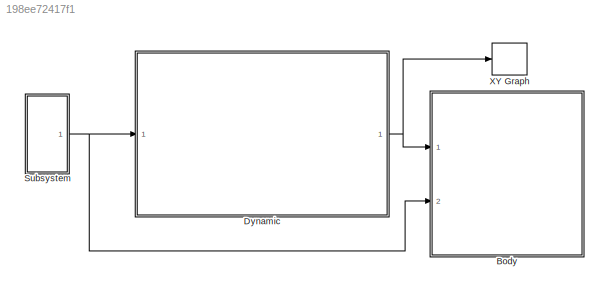
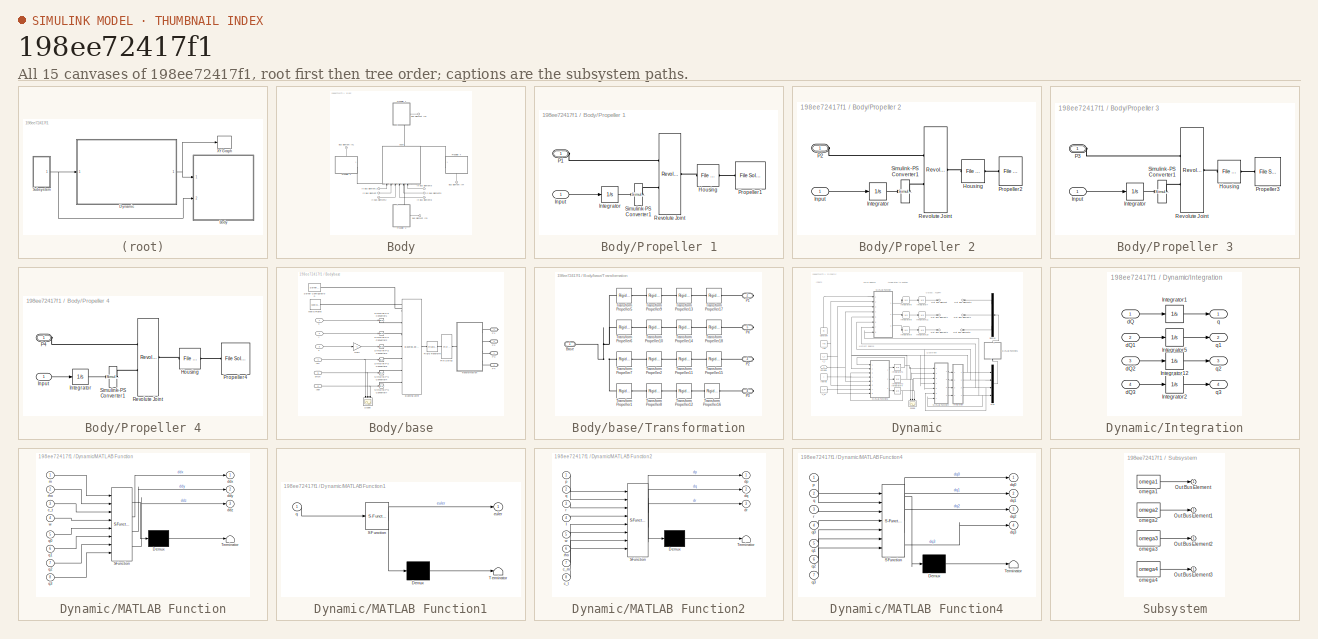
[diagram: thumbnail index - all 15 canvases of the model, root first then tree order]
MODEL slx_198ee72417f1
KIND model
CONFIG AbsTol = auto
CONFIG EnableMultiTasking = off
CONFIG FixedStep = auto
CONFIG InitFcn = m=5;\nI=[0.5 0 0; 0 0.5 0; 0 0 1];\nc_t=0.02;\nc_m=0.005;\nh_i=10;\ng=9.80665;\nrho=1;\nomega_hover=sqrt(m*g/(4*0.5*c_t));\ndlgtitle= 'Flight Mode Selection';\nprompt='Select the flight mode:';\nlist={'Hover', 'Underactuation by 10%', 'Overactuation of Only Rear Motor by 10%'};\n[casee,~]=listdlg('PromptString',prompt,'ListString',list,'ListSize',[240,80],'InitialValue',1,'Name','Mode Selection','OKString','...<+390ch>
CONFIG MaxStep = auto
CONFIG MinStep = auto
CONFIG RelTol = 1e-3
CONFIG SampleTimeConstraint = Unconstrained
CONFIG SolverName = VariableStepAuto
CONFIG StartTime = 0.0
CONFIG StopTime = 10.0
BLOCK [SubSystem] Body
  Ports = [2]
  RequestExecContextInheritance = off
BLOCK [Inport] Body/Bus Element In1
  NameLocation = left
  Port = 2
BLOCK [Inport] Body/Bus Element In2
  NameLocation = top
  Port = 2
BLOCK [Inport] Body/Bus Element In3
  NameLocation = top
  Port = 2
BLOCK [Inport] Body/Bus Element In4
  NameLocation = right
  Port = 2
BLOCK [Inport] Body/In Bus Element
BLOCK [Inport] Body/In Bus Element1
BLOCK [Inport] Body/In Bus Element2
BLOCK [Inport] Body/In Bus Element5
  NameLocation = top
BLOCK [Inport] Body/In Bus Element8
  NameLocation = top
BLOCK [Inport] Body/In Bus Element9
  NameLocation = top
BLOCK [SubSystem] Body/Propeller 1
  NameLocation = top
  PortSchema = {"entries":[{"content":{"sides":[{"content":{"connectorIds":["LConn1"]},"type":"ConnectorPlacement.EquallySpacedRectSide","uuid":"cdf25c99-c2c9-48d7-87ea-f6e3a99d1ccc"},{"content":{"connectorIds":[],"side":"RIGHT"},"type":"ConnectorPlacement.EquallySpacedRectSide","uuid":"40e1c002-c04a-4a5a-8e9c-b357988226a7"},{"content":{"connectorIds":[],"side":"TOP"},"type":"ConnectorPlacement.EquallySpacedRect...<+386ch>  <repeated x3 — deduplicated; at blocks: Propeller 1, Propeller 3, Propeller 4>
  Ports = [1, 0, 0, 0, 0, 1]
  RequestExecContextInheritance = off
BLOCK [Reference] Body/Propeller 1/Housing  REF=sm_lib/Body Elements/File Solid
  Ports = [0, 0, 0, 0, 0, 1, 1]
  SourceBlock = sm_lib/Body Elements/File Solid
  SourceProductBaseCode = MS
  SourceType = File Solid
BLOCK [Inport] Body/Propeller 1/Input
BLOCK [Integrator] Body/Propeller 1/Integrator
  Ports = [1, 1]
BLOCK [PMIOPort] Body/Propeller 1/P1
  Side = Left
BLOCK [Reference] Body/Propeller 1/Propeller1  REF=sm_lib/Body Elements/File Solid
  Ports = [0, 0, 0, 0, 0, 1]
  SourceBlock = sm_lib/Body Elements/File Solid
  SourceProductBaseCode = MS
  SourceType = File Solid
BLOCK [Reference] Body/Propeller 1/Revolute Joint  REF=sm_lib/Joints/Revolute Joint
  Ports = [0, 0, 0, 0, 0, 2, 1]
  SourceBlock = sm_lib/Joints/Revolute Joint
  SourceProductBaseCode = MS
  SourceType = Revolute Joint
BLOCK [Reference] Body/Propeller 1/Simulink-PS Converter1  REF=nesl_utility/Simulink-PS
Converter
  Ports = [1, 0, 0, 0, 0, 0, 1]
  SourceBlock = nesl_utility/Simulink-PS\nConverter
  SourceProductBaseCode = PW,SS
  SourceType = Simulink-PS\nConverter
BLOCK [SubSystem] Body/Propeller 2
  NameLocation = left
  PortSchema = {"entries":[{"content":{"sides":[{"content":{"connectorIds":["LConn1"]},"type":"ConnectorPlacement.EquallySpacedRectSide","uuid":"cdf25c99-c2c9-48d7-87ea-f6e3a99d1ccc"},{"content":{"connectorIds":[],"side":"RIGHT"},"type":"ConnectorPlacement.EquallySpacedRectSide","uuid":"40e1c002-c04a-4a5a-8e9c-b357988226a7"},{"content":{"connectorIds":["In1"],"side":"TOP"},"type":"ConnectorPlacement.EquallySpace...<+242ch>
  Ports = [1, 0, 0, 0, 0, 1]
  RequestExecContextInheritance = off
BLOCK [Reference] Body/Propeller 2/Housing  REF=sm_lib/Body Elements/File Solid
  Ports = [0, 0, 0, 0, 0, 1, 1]
  SourceBlock = sm_lib/Body Elements/File Solid
  SourceProductBaseCode = MS
  SourceType = File Solid
BLOCK [Inport] Body/Propeller 2/Input
BLOCK [Integrator] Body/Propeller 2/Integrator
  Ports = [1, 1]
BLOCK [PMIOPort] Body/Propeller 2/P2
  Side = Left
BLOCK [Reference] Body/Propeller 2/Propeller2  REF=sm_lib/Body Elements/File Solid
  Ports = [0, 0, 0, 0, 0, 1]
  SourceBlock = sm_lib/Body Elements/File Solid
  SourceProductBaseCode = MS
  SourceType = File Solid
BLOCK [Reference] Body/Propeller 2/Revolute Joint  REF=sm_lib/Joints/Revolute Joint
  Ports = [0, 0, 0, 0, 0, 2, 1]
  SourceBlock = sm_lib/Joints/Revolute Joint
  SourceProductBaseCode = MS
  SourceType = Revolute Joint
BLOCK [Reference] Body/Propeller 2/Simulink-PS Converter1  REF=nesl_utility/Simulink-PS
Converter
  Ports = [1, 0, 0, 0, 0, 0, 1]
  SourceBlock = nesl_utility/Simulink-PS\nConverter
  SourceProductBaseCode = PW,SS
  SourceType = Simulink-PS\nConverter
BLOCK [SubSystem] Body/Propeller 3
  Ports = [1, 0, 0, 0, 0, 1]
  RequestExecContextInheritance = off
BLOCK [Reference] Body/Propeller 3/Housing  REF=sm_lib/Body Elements/File Solid
  Ports = [0, 0, 0, 0, 0, 1, 1]
  SourceBlock = sm_lib/Body Elements/File Solid
  SourceProductBaseCode = MS
  SourceType = File Solid
BLOCK [Inport] Body/Propeller 3/Input
BLOCK [Integrator] Body/Propeller 3/Integrator
  Ports = [1, 1]
BLOCK [PMIOPort] Body/Propeller 3/P3
  Side = Left
BLOCK [Reference] Body/Propeller 3/Propeller3  REF=sm_lib/Body Elements/File Solid
  Ports = [0, 0, 0, 0, 0, 1]
  SourceBlock = sm_lib/Body Elements/File Solid
  SourceProductBaseCode = MS
  SourceType = File Solid
BLOCK [Reference] Body/Propeller 3/Revolute Joint  REF=sm_lib/Joints/Revolute Joint
  Ports = [0, 0, 0, 0, 0, 2, 1]
  SourceBlock = sm_lib/Joints/Revolute Joint
  SourceProductBaseCode = MS
  SourceType = Revolute Joint
BLOCK [Reference] Body/Propeller 3/Simulink-PS Converter1  REF=nesl_utility/Simulink-PS
Converter
  Ports = [1, 0, 0, 0, 0, 0, 1]
  SourceBlock = nesl_utility/Simulink-PS\nConverter
  SourceProductBaseCode = PW,SS
  SourceType = Simulink-PS\nConverter
BLOCK [SubSystem] Body/Propeller 4
  NameLocation = right
  Ports = [1, 0, 0, 0, 0, 1]
  RequestExecContextInheritance = off
BLOCK [Reference] Body/Propeller 4/Housing  REF=sm_lib/Body Elements/File Solid
  Ports = [0, 0, 0, 0, 0, 1, 1]
  SourceBlock = sm_lib/Body Elements/File Solid
  SourceProductBaseCode = MS
  SourceType = File Solid
BLOCK [Inport] Body/Propeller 4/Input
BLOCK [Integrator] Body/Propeller 4/Integrator
  Ports = [1, 1]
BLOCK [PMIOPort] Body/Propeller 4/P4
  Side = Left
BLOCK [Reference] Body/Propeller 4/Propeller4  REF=sm_lib/Body Elements/File Solid
  Ports = [0, 0, 0, 0, 0, 1]
  SourceBlock = sm_lib/Body Elements/File Solid
  SourceProductBaseCode = MS
  SourceType = File Solid
BLOCK [Reference] Body/Propeller 4/Revolute Joint  REF=sm_lib/Joints/Revolute Joint
  Ports = [0, 0, 0, 0, 0, 2, 1]
  SourceBlock = sm_lib/Joints/Revolute Joint
  SourceProductBaseCode = MS
  SourceType = Revolute Joint
BLOCK [Reference] Body/Propeller 4/Simulink-PS Converter1  REF=nesl_utility/Simulink-PS
Converter
  Ports = [1, 0, 0, 0, 0, 0, 1]
  SourceBlock = nesl_utility/Simulink-PS\nConverter
  SourceProductBaseCode = PW,SS
  SourceType = Simulink-PS\nConverter
BLOCK [SubSystem] Body/base
  NameLocation = right
  PortSchema = {"entries":[{"content":{"sides":[{"content":{"connectorIds":["In1","In2","In3","LConn1","In4","In5","In6"]},"type":"ConnectorPlacement.EquallySpacedRectSide","uuid":"779db686-b372-48f2-8e56-3039c1dfa828"},{"content":{"connectorIds":["RConn1"],"side":"RIGHT"},"type":"ConnectorPlacement.EquallySpacedRectSide","uuid":"5342d4b0-d4cc-41da-a1a0-0c3712086a6a"},{"content":{"connectorIds":["LConn2"],"side"...<+441ch>
  Ports = [6, 0, 0, 0, 0, 2, 2]
  RequestExecContextInheritance = off
BLOCK [Reference] Body/base/Bushing Joint  REF=sm_lib/Joints/Bushing Joint
  Ports = [0, 0, 0, 0, 0, 7, 1]
  SourceBlock = sm_lib/Joints/Bushing Joint
  SourceProductBaseCode = MS
  SourceType = Bushing Joint
BLOCK [Reference] Body/base/File Solid2  REF=sm_lib/Body Elements/File Solid
  NameLocation = top
  Ports = [0, 0, 0, 0, 0, 1, 1]
  SourceBlock = sm_lib/Body Elements/File Solid
  SourceProductBaseCode = MS
  SourceType = File Solid
BLOCK [Gain] Body/base/Gain
  Gain = -1
BLOCK [PMIOPort] Body/base/P1
  Port = 3
  Side = Right
BLOCK [PMIOPort] Body/base/P2
  Port = 2
  Side = Left
BLOCK [PMIOPort] Body/base/P3
  Side = Left
BLOCK [PMIOPort] Body/base/P4
  Port = 4
  Side = Right
BLOCK [Reference] Body/base/Rigid Transform  REF=sm_lib/Frames and
Transforms/Rigid
Transform
  Ports = [0, 0, 0, 0, 0, 1, 1]
  SourceBlock = sm_lib/Frames and\nTransforms/Rigid\nTransform
  SourceProductBaseCode = MS
  SourceType = Rigid\nTransform
BLOCK [Scope] Body/base/Scope
  Floating = off
  NameLocation = left
  NumInputPorts = 3
  Ports = [3]
  ScopeSpecificationString = Simulink.scopes.TimeScopeBlockCfg('CurrentConfiguration', extmgr.ConfigurationSet(extmgr.Configuration('Core','General UI',true),extmgr.Configuration('Core','Source UI',true),extmgr.Configuration('Sources','WiredSimulink',true,'DataLoggingVariableName','ScopeData1'),extmgr.Configuration('Visuals','Time Domain',true,'SerializedDisplays',{struct('MinYLimReal','-0.2519','MaxYLimReal','2.25262','YLabe...<+1401ch>
BLOCK [Reference] Body/base/Simulink-PS Converter1  REF=nesl_utility/Simulink-PS
Converter
  Ports = [1, 0, 0, 0, 0, 0, 1]
  SourceBlock = nesl_utility/Simulink-PS\nConverter
  SourceProductBaseCode = PW,SS
  SourceType = Simulink-PS\nConverter
BLOCK [Reference] Body/base/Simulink-PS Converter2  REF=nesl_utility/Simulink-PS
Converter
  Ports = [1, 0, 0, 0, 0, 0, 1]
  SourceBlock = nesl_utility/Simulink-PS\nConverter
  SourceProductBaseCode = PW,SS
  SourceType = Simulink-PS\nConverter
BLOCK [Reference] Body/base/Simulink-PS Converter3  REF=nesl_utility/Simulink-PS
Converter
  Ports = [1, 0, 0, 0, 0, 0, 1]
  SourceBlock = nesl_utility/Simulink-PS\nConverter
  SourceProductBaseCode = PW,SS
  SourceType = Simulink-PS\nConverter
BLOCK [Reference] Body/base/Simulink-PS Converter4  REF=nesl_utility/Simulink-PS
Converter
  Ports = [1, 0, 0, 0, 0, 0, 1]
  SourceBlock = nesl_utility/Simulink-PS\nConverter
  SourceProductBaseCode = PW,SS
  SourceType = Simulink-PS\nConverter
BLOCK [Reference] Body/base/Simulink-PS Converter5  REF=nesl_utility/Simulink-PS
Converter
  Ports = [1, 0, 0, 0, 0, 0, 1]
  SourceBlock = nesl_utility/Simulink-PS\nConverter
  SourceProductBaseCode = PW,SS
  SourceType = Simulink-PS\nConverter
BLOCK [Reference] Body/base/Simulink-PS Converter7  REF=nesl_utility/Simulink-PS
Converter
  Ports = [1, 0, 0, 0, 0, 0, 1]
  SourceBlock = nesl_utility/Simulink-PS\nConverter
  SourceProductBaseCode = PW,SS
  SourceType = Simulink-PS\nConverter
BLOCK [Reference] Body/base/Solver Configuration  REF=nesl_utility/Solver
Configuration
  Ports = [0, 0, 0, 0, 0, 0, 1]
  SourceBlock = nesl_utility/Solver\nConfiguration
  SourceProductBaseCode = PW,SS
  SourceType = Solver\nConfiguration
BLOCK [SubSystem] Body/base/Transformation
  Ports = [0, 0, 0, 0, 0, 1, 4]
  RequestExecContextInheritance = off
BLOCK [PMIOPort] Body/base/Transformation/Base
  Side = Left
BLOCK [PMIOPort] Body/base/Transformation/P1
  Port = 2
  Side = Right
BLOCK [PMIOPort] Body/base/Transformation/P2
  Port = 3
  Side = Right
BLOCK [PMIOPort] Body/base/Transformation/P3
  Port = 4
  Side = Right
BLOCK [PMIOPort] Body/base/Transformation/P4
  Port = 5
  Side = Right
BLOCK [Reference] Body/base/Transformation/Transform Propeller1  REF=sm_lib/Frames and
Transforms/Rigid
Transform
  Ports = [0, 0, 0, 0, 0, 1, 1]
  SourceBlock = sm_lib/Frames and\nTransforms/Rigid\nTransform
  SourceProductBaseCode = MS
  SourceType = Rigid\nTransform
BLOCK [Reference] Body/base/Transformation/Transform Propeller10  REF=sm_lib/Frames and
Transforms/Rigid
Transform
  Ports = [0, 0, 0, 0, 0, 1, 1]
  SourceBlock = sm_lib/Frames and\nTransforms/Rigid\nTransform
  SourceProductBaseCode = MS
  SourceType = Rigid\nTransform
BLOCK [Reference] Body/base/Transformation/Transform Propeller11  REF=sm_lib/Frames and
Transforms/Rigid
Transform
  Ports = [0, 0, 0, 0, 0, 1, 1]
  SourceBlock = sm_lib/Frames and\nTransforms/Rigid\nTransform
  SourceProductBaseCode = MS
  SourceType = Rigid\nTransform
BLOCK [Reference] Body/base/Transformation/Transform Propeller12  REF=sm_lib/Frames and
Transforms/Rigid
Transform
  Ports = [0, 0, 0, 0, 0, 1, 1]
  SourceBlock = sm_lib/Frames and\nTransforms/Rigid\nTransform
  SourceProductBaseCode = MS
  SourceType = Rigid\nTransform
BLOCK [Reference] Body/base/Transformation/Transform Propeller13  REF=sm_lib/Frames and
Transforms/Rigid
Transform
  Ports = [0, 0, 0, 0, 0, 1, 1]
  SourceBlock = sm_lib/Frames and\nTransforms/Rigid\nTransform
  SourceProductBaseCode = MS
  SourceType = Rigid\nTransform
BLOCK [Reference] Body/base/Transformation/Transform Propeller14  REF=sm_lib/Frames and
Transforms/Rigid
Transform
  Ports = [0, 0, 0, 0, 0, 1, 1]
  SourceBlock = sm_lib/Frames and\nTransforms/Rigid\nTransform
  SourceProductBaseCode = MS
  SourceType = Rigid\nTransform
BLOCK [Reference] Body/base/Transformation/Transform Propeller15  REF=sm_lib/Frames and
Transforms/Rigid
Transform
  Ports = [0, 0, 0, 0, 0, 1, 1]
  SourceBlock = sm_lib/Frames and\nTransforms/Rigid\nTransform
  SourceProductBaseCode = MS
  SourceType = Rigid\nTransform
BLOCK [Reference] Body/base/Transformation/Transform Propeller16  REF=sm_lib/Frames and
Transforms/Rigid
Transform
  Ports = [0, 0, 0, 0, 0, 1, 1]
  SourceBlock = sm_lib/Frames and\nTransforms/Rigid\nTransform
  SourceProductBaseCode = MS
  SourceType = Rigid\nTransform
BLOCK [Reference] Body/base/Transformation/Transform Propeller17  REF=sm_lib/Frames and
Transforms/Rigid
Transform
  Ports = [0, 0, 0, 0, 0, 1, 1]
  SourceBlock = sm_lib/Frames and\nTransforms/Rigid\nTransform
  SourceProductBaseCode = MS
  SourceType = Rigid\nTransform
BLOCK [Reference] Body/base/Transformation/Transform Propeller18  REF=sm_lib/Frames and
Transforms/Rigid
Transform
  Ports = [0, 0, 0, 0, 0, 1, 1]
  SourceBlock = sm_lib/Frames and\nTransforms/Rigid\nTransform
  SourceProductBaseCode = MS
  SourceType = Rigid\nTransform
BLOCK [Reference] Body/base/Transformation/Transform Propeller2  REF=sm_lib/Frames and
Transforms/Rigid
Transform
  Ports = [0, 0, 0, 0, 0, 1, 1]
  SourceBlock = sm_lib/Frames and\nTransforms/Rigid\nTransform
  SourceProductBaseCode = MS
  SourceType = Rigid\nTransform
BLOCK [Reference] Body/base/Transformation/Transform Propeller5  REF=sm_lib/Frames and
Transforms/Rigid
Transform
  Ports = [0, 0, 0, 0, 0, 1, 1]
  SourceBlock = sm_lib/Frames and\nTransforms/Rigid\nTransform
  SourceProductBaseCode = MS
  SourceType = Rigid\nTransform
BLOCK [Reference] Body/base/Transformation/Transform Propeller6  REF=sm_lib/Frames and
Transforms/Rigid
Transform
  Ports = [0, 0, 0, 0, 0, 1, 1]
  SourceBlock = sm_lib/Frames and\nTransforms/Rigid\nTransform
  SourceProductBaseCode = MS
  SourceType = Rigid\nTransform
BLOCK [Reference] Body/base/Transformation/Transform Propeller7  REF=sm_lib/Frames and
Transforms/Rigid
Transform
  Ports = [0, 0, 0, 0, 0, 1, 1]
  SourceBlock = sm_lib/Frames and\nTransforms/Rigid\nTransform
  SourceProductBaseCode = MS
  SourceType = Rigid\nTransform
BLOCK [Reference] Body/base/Transformation/Transform Propeller8  REF=sm_lib/Frames and
Transforms/Rigid
Transform
  Ports = [0, 0, 0, 0, 0, 1, 1]
  SourceBlock = sm_lib/Frames and\nTransforms/Rigid\nTransform
  SourceProductBaseCode = MS
  SourceType = Rigid\nTransform
BLOCK [Reference] Body/base/Transformation/Transform Propeller9  REF=sm_lib/Frames and
Transforms/Rigid
Transform
  Ports = [0, 0, 0, 0, 0, 1, 1]
  SourceBlock = sm_lib/Frames and\nTransforms/Rigid\nTransform
  SourceProductBaseCode = MS
  SourceType = Rigid\nTransform
BLOCK [Reference] Body/base/World Frame  REF=sm_lib/Frames and
Transforms/World Frame
  Ports = [0, 0, 0, 0, 0, 0, 1]
  SourceBlock = sm_lib/Frames and\nTransforms/World Frame
  SourceProductBaseCode = MS
  SourceType = World Frame
BLOCK [Inport] Body/base/pitch
  Port = 5
BLOCK [Inport] Body/base/roll
  Port = 4
BLOCK [Inport] Body/base/x
BLOCK [Inport] Body/base/y
  Port = 2
BLOCK [Inport] Body/base/yaw
  Port = 6
BLOCK [Inport] Body/base/z
  Port = 3
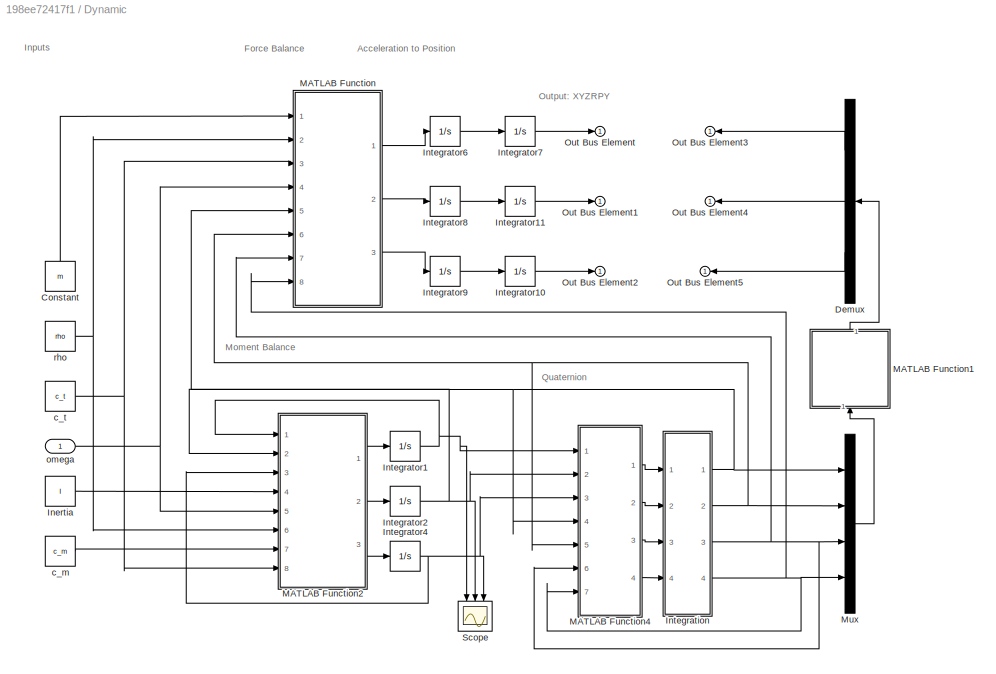
BLOCK [SubSystem] Dynamic
  Ports = [1, 1]
  RequestExecContextInheritance = off
BLOCK [Constant] Dynamic/Constant
  NameLocation = right
  Value = m
BLOCK [Demux] Dynamic/Demux
  NameLocation = top
  Outputs = 3
  Ports = [1, 3]
BLOCK [Constant] Dynamic/Inertia
  Value = I
BLOCK [SubSystem] Dynamic/Integration
  Ports = [4, 4]
  RequestExecContextInheritance = off
BLOCK [Integrator] Dynamic/Integration/Integrator1
  InitialCondition = 1
  Ports = [1, 1]
BLOCK [Integrator] Dynamic/Integration/Integrator12
  Ports = [1, 1]
BLOCK [Integrator] Dynamic/Integration/Integrator2
  Ports = [1, 1]
BLOCK [Integrator] Dynamic/Integration/Integrator5
  Ports = [1, 1]
BLOCK [Inport] Dynamic/Integration/dQ
BLOCK [Inport] Dynamic/Integration/dQ1
  Port = 2
BLOCK [Inport] Dynamic/Integration/dQ2
  Port = 3
BLOCK [Inport] Dynamic/Integration/dQ3
  Port = 4
BLOCK [Outport] Dynamic/Integration/q
BLOCK [Outport] Dynamic/Integration/q1
  Port = 2
BLOCK [Outport] Dynamic/Integration/q2
  Port = 3
BLOCK [Outport] Dynamic/Integration/q3
  Port = 4
BLOCK [Integrator] Dynamic/Integrator1
  Ports = [1, 1]
BLOCK [Integrator] Dynamic/Integrator10
  InitialCondition = -h_i
  Ports = [1, 1]
BLOCK [Integrator] Dynamic/Integrator11
  Ports = [1, 1]
BLOCK [Integrator] Dynamic/Integrator2
  Ports = [1, 1]
BLOCK [Integrator] Dynamic/Integrator4
  Ports = [1, 1]
BLOCK [Integrator] Dynamic/Integrator6
  Ports = [1, 1]
BLOCK [Integrator] Dynamic/Integrator7
  Ports = [1, 1]
BLOCK [Integrator] Dynamic/Integrator8
  Ports = [1, 1]
BLOCK [Integrator] Dynamic/Integrator9
  Ports = [1, 1]
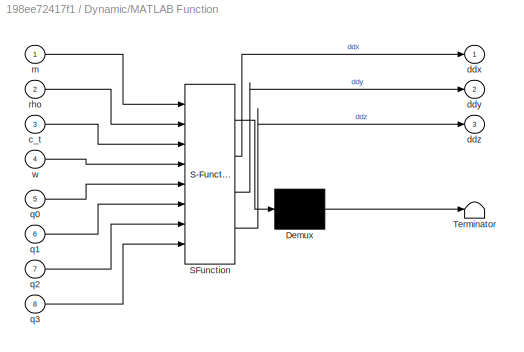
BLOCK [SubSystem] Dynamic/MATLAB Function
  ErrorFcn = Stateflow.Translate.translate
  PermitHierarchicalResolution = ExplicitOnly
  Ports = [8, 3]
  RequestExecContextInheritance = off
  SFBlockType = MATLAB Function
  TreatAsAtomicUnit = on
BLOCK [Demux] Dynamic/MATLAB Function/ Demux 
  Outputs = 1
  Ports = [1, 1]
BLOCK [S-Function] Dynamic/MATLAB Function/ SFunction 
  EnableBusSupport = on
  FunctionName = sf_sfun
  PortCounts = [8 4]
  Ports = [8, 4]
  SFcnIsStateOwnerBlock = off
  SFunctionDeploymentMode = off
  Tag = Stateflow S-Function 9
BLOCK [Terminator] Dynamic/MATLAB Function/ Terminator 
BLOCK [Inport] Dynamic/MATLAB Function/c_t
  Port = 3
BLOCK [Outport] Dynamic/MATLAB Function/ddx
BLOCK [Outport] Dynamic/MATLAB Function/ddy
  Port = 2
BLOCK [Outport] Dynamic/MATLAB Function/ddz
  Port = 3
BLOCK [Inport] Dynamic/MATLAB Function/m
BLOCK [Inport] Dynamic/MATLAB Function/q0
  Port = 5
BLOCK [Inport] Dynamic/MATLAB Function/q1
  Port = 6
BLOCK [Inport] Dynamic/MATLAB Function/q2
  Port = 7
BLOCK [Inport] Dynamic/MATLAB Function/q3
  Port = 8
BLOCK [Inport] Dynamic/MATLAB Function/rho
  Port = 2
BLOCK [Inport] Dynamic/MATLAB Function/w
  Port = 4
BLOCK [SubSystem] Dynamic/MATLAB Function1
  ErrorFcn = Stateflow.Translate.translate
  NameLocation = right
  PermitHierarchicalResolution = ExplicitOnly
  Ports = [1, 1]
  RequestExecContextInheritance = off
  SFBlockType = MATLAB Function
  TreatAsAtomicUnit = on
BLOCK [Demux] Dynamic/MATLAB Function1/ Demux 
  Outputs = 1
  Ports = [1, 1]
BLOCK [S-Function] Dynamic/MATLAB Function1/ SFunction 
  EnableBusSupport = on
  FunctionName = sf_sfun
  PortCounts = [1 2]
  Ports = [1, 2]
  SFcnIsStateOwnerBlock = off
  SFunctionDeploymentMode = off
  Tag = Stateflow S-Function 10
BLOCK [Terminator] Dynamic/MATLAB Function1/ Terminator 
BLOCK [Outport] Dynamic/MATLAB Function1/euler
BLOCK [Inport] Dynamic/MATLAB Function1/q
BLOCK [SubSystem] Dynamic/MATLAB Function2
  ErrorFcn = Stateflow.Translate.translate
  PermitHierarchicalResolution = ExplicitOnly
  Ports = [8, 3]
  RequestExecContextInheritance = off
  SFBlockType = MATLAB Function
  TreatAsAtomicUnit = on
BLOCK [Demux] Dynamic/MATLAB Function2/ Demux 
  Outputs = 1
  Ports = [1, 1]
BLOCK [S-Function] Dynamic/MATLAB Function2/ SFunction 
  EnableBusSupport = on
  FunctionName = sf_sfun
  PortCounts = [8 4]
  Ports = [8, 4]
  SFcnIsStateOwnerBlock = off
  SFunctionDeploymentMode = off
  Tag = Stateflow S-Function 11
BLOCK [Terminator] Dynamic/MATLAB Function2/ Terminator 
BLOCK [Inport] Dynamic/MATLAB Function2/I
  Port = 4
BLOCK [Inport] Dynamic/MATLAB Function2/c_m
  Port = 7
BLOCK [Inport] Dynamic/MATLAB Function2/c_t
  Port = 8
BLOCK [Outport] Dynamic/MATLAB Function2/dp
BLOCK [Outport] Dynamic/MATLAB Function2/dq
  Port = 2
BLOCK [Outport] Dynamic/MATLAB Function2/dr
  Port = 3
BLOCK [Inport] Dynamic/MATLAB Function2/p
BLOCK [Inport] Dynamic/MATLAB Function2/q
  Port = 2
BLOCK [Inport] Dynamic/MATLAB Function2/r
  Port = 3
BLOCK [Inport] Dynamic/MATLAB Function2/rho
  Port = 6
BLOCK [Inport] Dynamic/MATLAB Function2/w
  Port = 5
BLOCK [SubSystem] Dynamic/MATLAB Function4
  ErrorFcn = Stateflow.Translate.translate
  PermitHierarchicalResolution = ExplicitOnly
  Ports = [7, 4]
  RequestExecContextInheritance = off
  SFBlockType = MATLAB Function
  TreatAsAtomicUnit = on
BLOCK [Demux] Dynamic/MATLAB Function4/ Demux 
  Outputs = 1
  Ports = [1, 1]
BLOCK [S-Function] Dynamic/MATLAB Function4/ SFunction 
  EnableBusSupport = on
  FunctionName = sf_sfun
  PortCounts = [7 5]
  Ports = [7, 5]
  SFcnIsStateOwnerBlock = off
  SFunctionDeploymentMode = off
  Tag = Stateflow S-Function 12
BLOCK [Terminator] Dynamic/MATLAB Function4/ Terminator 
BLOCK [Outport] Dynamic/MATLAB Function4/dq0
BLOCK [Outport] Dynamic/MATLAB Function4/dq1
  Port = 2
BLOCK [Outport] Dynamic/MATLAB Function4/dq2
  Port = 3
BLOCK [Outport] Dynamic/MATLAB Function4/dq3
  Port = 4
BLOCK [Inport] Dynamic/MATLAB Function4/p
BLOCK [Inport] Dynamic/MATLAB Function4/q
  Port = 2
BLOCK [Inport] Dynamic/MATLAB Function4/q0
  Port = 4
BLOCK [Inport] Dynamic/MATLAB Function4/q1
  Port = 5
BLOCK [Inport] Dynamic/MATLAB Function4/q2
  Port = 6
BLOCK [Inport] Dynamic/MATLAB Function4/q3
  Port = 7
BLOCK [Inport] Dynamic/MATLAB Function4/r
  Port = 3
BLOCK [Mux] Dynamic/Mux
  DisplayOption = bar
  Ports = [4, 1]
BLOCK [Outport] Dynamic/Out Bus Element
BLOCK [Outport] Dynamic/Out Bus Element1
BLOCK [Outport] Dynamic/Out Bus Element2
BLOCK [Outport] Dynamic/Out Bus Element3
  NameLocation = top
BLOCK [Outport] Dynamic/Out Bus Element4
  NameLocation = top
BLOCK [Outport] Dynamic/Out Bus Element5
  NameLocation = top
BLOCK [Scope] Dynamic/Scope
  Floating = off
  NameLocation = left
  NumInputPorts = 3
  Ports = [3]
  ScopeSpecificationString = Simulink.scopes.TimeScopeBlockCfg('CurrentConfiguration', extmgr.ConfigurationSet(extmgr.Configuration('Core','General UI',true),extmgr.Configuration('Core','Source UI',true),extmgr.Configuration('Sources','WiredSimulink',true),extmgr.Configuration('Visuals','Time Domain',true,'SerializedDisplays',{struct('MinYLimReal','-0.004','MaxYLimReal','0.036','YLabelReal','','MinYLimMag','0.00000','MaxYLimM...<+1438ch>
BLOCK [Constant] Dynamic/c_m
  Value = c_m
BLOCK [Constant] Dynamic/c_t
  Value = c_t
BLOCK [Inport] Dynamic/omega
BLOCK [Constant] Dynamic/rho
  Value = rho
BLOCK [SubSystem] Subsystem
  Ports = [0, 1]
  RequestExecContextInheritance = off
BLOCK [Outport] Subsystem/Out Bus Element
BLOCK [Outport] Subsystem/Out Bus Element1
BLOCK [Outport] Subsystem/Out Bus Element2
BLOCK [Outport] Subsystem/Out Bus Element3
BLOCK [Constant] Subsystem/omega1
  Value = omega1
BLOCK [Constant] Subsystem/omega2
  Value = omega2
BLOCK [Constant] Subsystem/omega3
  Value = omega3
BLOCK [Constant] Subsystem/omega4
  Value = omega4
BLOCK [Record] XY Graph
  CompatibilityTag = XY
  FileSettingsInternal = {"entries":[{"content":{"excelSettings":{"content":{},"type":"Streamout.ExcelSettings"}},"type":"Streamout.FileSettingStorage","uuid":"bac452ce-c1d5-45cb-92cf-032850538d49"}],"packageUris":["http://schema.mathworks.com/mf0/streamout_blocks/R2020a"],"version":"1.0"}
  Layout = [1 2]
  Ports = [1]
  SignalsInternal = {"entries":[{"content":{"signals":[{"content":{"blockPath":["dyn1/XY Graph"],"channel":[],"dimensions":[1],"domain":"dyn1/XY Graph","hasChildren":true,"lineColor":"#ff13a6","plots":[],"port":1,"sid":[""],"signalID":722,"signalName":"Dynamic"},"type":"RecordBlkView.Signal","uuid":"77a6a202-e609-4a46-b373-2c7426556f70"},{"content":{"blockPath":["dyn1/XY Graph"],"channel":[],"dimensions":[1],"domain"...<+1956ch>
ANNOTATION Dynamic: Acceleration to Position
ANNOTATION Dynamic: Force Balance
ANNOTATION Dynamic: Inputs
ANNOTATION Dynamic: Moment Balance
ANNOTATION Dynamic: Output: XYZRPY
ANNOTATION Dynamic: Quaternion
LINE Body/Bus Element In1:1 -> Body/Propeller 2:1
LINE Body/Bus Element In2:1 -> Body/Propeller 1:1
LINE Body/Bus Element In3:1 -> Body/Propeller 3:1
LINE Body/Bus Element In4:1 -> Body/Propeller 4:1
LINE Body/In Bus Element1:1 -> Body/base:1
LINE Body/In Bus Element2:1 -> Body/base:3
LINE Body/In Bus Element5:1 -> Body/base:5
LINE Body/In Bus Element8:1 -> Body/base:4
LINE Body/In Bus Element9:1 -> Body/base:6
LINE Body/In Bus Element:1 -> Body/base:2
LINE Body/Propeller 1/Input:1 -> Body/Propeller 1/Integrator:1
LINE Body/Propeller 1/Integrator:1 -> Body/Propeller 1/Simulink-PS Converter1:1
LINE Body/Propeller 2/Input:1 -> Body/Propeller 2/Integrator:1
LINE Body/Propeller 2/Integrator:1 -> Body/Propeller 2/Simulink-PS Converter1:1
LINE Body/Propeller 3/Input:1 -> Body/Propeller 3/Integrator:1
LINE Body/Propeller 3/Integrator:1 -> Body/Propeller 3/Simulink-PS Converter1:1
LINE Body/Propeller 4/Input:1 -> Body/Propeller 4/Integrator:1
LINE Body/Propeller 4/Integrator:1 -> Body/Propeller 4/Simulink-PS Converter1:1
LINE Body/base/Gain:1 -> Body/base/Simulink-PS Converter3:1
NET Body/base/pitch:1 -> Body/base/Scope:2, Body/base/Simulink-PS Converter4:1
NET Body/base/roll:1 -> Body/base/Scope:1, Body/base/Simulink-PS Converter5:1
LINE Body/base/x:1 -> Body/base/Simulink-PS Converter1:1
LINE Body/base/y:1 -> Body/base/Simulink-PS Converter2:1
NET Body/base/yaw:1 -> Body/base/Scope:3, Body/base/Simulink-PS Converter7:1
LINE Body/base/z:1 -> Body/base/Gain:1
LINE Dynamic/Constant:1 -> Dynamic/MATLAB Function:1
LINE Dynamic/Demux:1 -> Dynamic/Out Bus Element3:1
LINE Dynamic/Demux:2 -> Dynamic/Out Bus Element4:1
LINE Dynamic/Demux:3 -> Dynamic/Out Bus Element5:1
LINE Dynamic/Inertia:1 -> Dynamic/MATLAB Function2:4
LINE Dynamic/Integration/Integrator12:1 -> Dynamic/Integration/q2:1
LINE Dynamic/Integration/Integrator1:1 -> Dynamic/Integration/q:1
LINE Dynamic/Integration/Integrator2:1 -> Dynamic/Integration/q3:1
LINE Dynamic/Integration/Integrator5:1 -> Dynamic/Integration/q1:1
LINE Dynamic/Integration/dQ1:1 -> Dynamic/Integration/Integrator5:1
LINE Dynamic/Integration/dQ2:1 -> Dynamic/Integration/Integrator12:1
LINE Dynamic/Integration/dQ3:1 -> Dynamic/Integration/Integrator2:1
LINE Dynamic/Integration/dQ:1 -> Dynamic/Integration/Integrator1:1
NET Dynamic/Integration:1 -> Dynamic/MATLAB Function4:4, Dynamic/MATLAB Function:5, Dynamic/Mux:1
NET Dynamic/Integration:2 -> Dynamic/MATLAB Function4:5, Dynamic/MATLAB Function:6, Dynamic/Mux:2
NET Dynamic/Integration:3 -> Dynamic/MATLAB Function4:6, Dynamic/MATLAB Function:7, Dynamic/Mux:3
NET Dynamic/Integration:4 -> Dynamic/MATLAB Function4:7, Dynamic/MATLAB Function:8, Dynamic/Mux:4
LINE Dynamic/Integrator10:1 -> Dynamic/Out Bus Element2:1
LINE Dynamic/Integrator11:1 -> Dynamic/Out Bus Element1:1
NET Dynamic/Integrator1:1 -> Dynamic/MATLAB Function2:1, Dynamic/MATLAB Function4:1, Dynamic/Scope:1
NET Dynamic/Integrator2:1 -> Dynamic/MATLAB Function2:2, Dynamic/MATLAB Function4:2, Dynamic/Scope:2
NET Dynamic/Integrator4:1 -> Dynamic/MATLAB Function2:3, Dynamic/MATLAB Function4:3, Dynamic/Scope:3
LINE Dynamic/Integrator6:1 -> Dynamic/Integrator7:1
LINE Dynamic/Integrator7:1 -> Dynamic/Out Bus Element:1
LINE Dynamic/Integrator8:1 -> Dynamic/Integrator11:1
LINE Dynamic/Integrator9:1 -> Dynamic/Integrator10:1
LINE Dynamic/MATLAB Function1:1 -> Dynamic/Demux:1
LINE Dynamic/MATLAB Function2:1 -> Dynamic/Integrator1:1
LINE Dynamic/MATLAB Function2:2 -> Dynamic/Integrator2:1
LINE Dynamic/MATLAB Function2:3 -> Dynamic/Integrator4:1
LINE Dynamic/MATLAB Function4:1 -> Dynamic/Integration:1
LINE Dynamic/MATLAB Function4:2 -> Dynamic/Integration:2
LINE Dynamic/MATLAB Function4:3 -> Dynamic/Integration:3
LINE Dynamic/MATLAB Function4:4 -> Dynamic/Integration:4
LINE Dynamic/MATLAB Function:1 -> Dynamic/Integrator6:1
LINE Dynamic/MATLAB Function:2 -> Dynamic/Integrator8:1
LINE Dynamic/MATLAB Function:3 -> Dynamic/Integrator9:1
LINE Dynamic/Mux:1 -> Dynamic/MATLAB Function1:1
LINE Dynamic/c_m:1 -> Dynamic/MATLAB Function2:7
NET Dynamic/c_t:1 -> Dynamic/MATLAB Function2:8, Dynamic/MATLAB Function:3
NET Dynamic/omega:1 -> Dynamic/MATLAB Function2:5, Dynamic/MATLAB Function:4
NET Dynamic/rho:1 -> Dynamic/MATLAB Function2:6, Dynamic/MATLAB Function:2
NET Dynamic:1 -> Body:1, XY Graph:1
LINE Subsystem/omega1:1 -> Subsystem/Out Bus Element:1
LINE Subsystem/omega2:1 -> Subsystem/Out Bus Element1:1
LINE Subsystem/omega3:1 -> Subsystem/Out Bus Element2:1
LINE Subsystem/omega4:1 -> Subsystem/Out Bus Element3:1
NET Subsystem:1 -> Body:2, Dynamic:1
PLINE Body/Propeller 1/Housing:LConn1 -- Body/Propeller 1/Revolute Joint:RConn1
PLINE Body/Propeller 1/Housing:RConn1 -- Body/Propeller 1/Propeller1:LConn1
PLINE Body/Propeller 1/P1:RConn1 -- Body/Propeller 1/Revolute Joint:LConn1
PLINE Body/Propeller 1/Revolute Joint:LConn2 -- Body/Propeller 1/Simulink-PS Converter1:RConn1
PLINE Body/Propeller 1:LConn1 -- Body/base:RConn1
PLINE Body/Propeller 2/Housing:LConn1 -- Body/Propeller 2/Revolute Joint:RConn1
PLINE Body/Propeller 2/Housing:RConn1 -- Body/Propeller 2/Propeller2:LConn1
PLINE Body/Propeller 2/P2:RConn1 -- Body/Propeller 2/Revolute Joint:LConn1
PLINE Body/Propeller 2/Revolute Joint:LConn2 -- Body/Propeller 2/Simulink-PS Converter1:RConn1
PLINE Body/Propeller 2:LConn1 -- Body/base:LConn2
PLINE Body/Propeller 3/Housing:LConn1 -- Body/Propeller 3/Revolute Joint:RConn1
PLINE Body/Propeller 3/Housing:RConn1 -- Body/Propeller 3/Propeller3:LConn1
PLINE Body/Propeller 3/P3:RConn1 -- Body/Propeller 3/Revolute Joint:LConn1
PLINE Body/Propeller 3/Revolute Joint:LConn2 -- Body/Propeller 3/Simulink-PS Converter1:RConn1
PLINE Body/Propeller 3:LConn1 -- Body/base:LConn1
PLINE Body/Propeller 4/Housing:LConn1 -- Body/Propeller 4/Revolute Joint:RConn1
PLINE Body/Propeller 4/Housing:RConn1 -- Body/Propeller 4/Propeller4:LConn1
PLINE Body/Propeller 4/P4:RConn1 -- Body/Propeller 4/Revolute Joint:LConn1
PLINE Body/Propeller 4/Revolute Joint:LConn2 -- Body/Propeller 4/Simulink-PS Converter1:RConn1
PLINE Body/Propeller 4:LConn1 -- Body/base:RConn2
PNET net1: Body/base/Bushing Joint:LConn1 -- Body/base/Solver Configuration:RConn1 -- Body/base/World Frame:RConn1
PLINE Body/base/Bushing Joint:LConn2 -- Body/base/Simulink-PS Converter1:RConn1
PLINE Body/base/Bushing Joint:LConn3 -- Body/base/Simulink-PS Converter2:RConn1
PLINE Body/base/Bushing Joint:LConn4 -- Body/base/Simulink-PS Converter3:RConn1
PLINE Body/base/Bushing Joint:LConn5 -- Body/base/Simulink-PS Converter5:RConn1
PLINE Body/base/Bushing Joint:LConn6 -- Body/base/Simulink-PS Converter4:RConn1
PLINE Body/base/Bushing Joint:LConn7 -- Body/base/Simulink-PS Converter7:RConn1
PLINE Body/base/Bushing Joint:RConn1 -- Body/base/Rigid Transform:LConn1
PLINE Body/base/File Solid2:LConn1 -- Body/base/Transformation:LConn1
PLINE Body/base/File Solid2:RConn1 -- Body/base/Rigid Transform:RConn1
PLINE Body/base/P1:RConn1 -- Body/base/Transformation:RConn1
PLINE Body/base/P2:RConn1 -- Body/base/Transformation:RConn2
PLINE Body/base/P3:RConn1 -- Body/base/Transformation:RConn3
PLINE Body/base/P4:RConn1 -- Body/base/Transformation:RConn4
PNET net2: Body/base/Transformation/Base:RConn1 -- Body/base/Transformation/Transform Propeller1:LConn1 -- Body/base/Transformation/Transform Propeller5:LConn1 -- Body/base/Transformation/Transform Propeller6:LConn1 -- Body/base/Transformation/Transform Propeller7:LConn1
PLINE Body/base/Transformation/P1:RConn1 -- Body/base/Transformation/Transform Propeller17:RConn1
PLINE Body/base/Transformation/P2:RConn1 -- Body/base/Transformation/Transform Propeller15:RConn1
PLINE Body/base/Transformation/P3:RConn1 -- Body/base/Transformation/Transform Propeller16:RConn1
PLINE Body/base/Transformation/P4:RConn1 -- Body/base/Transformation/Transform Propeller18:RConn1
PLINE Body/base/Transformation/Transform Propeller10:LConn1 -- Body/base/Transformation/Transform Propeller6:RConn1
PLINE Body/base/Transformation/Transform Propeller10:RConn1 -- Body/base/Transformation/Transform Propeller14:LConn1
PLINE Body/base/Transformation/Transform Propeller11:LConn1 -- Body/base/Transformation/Transform Propeller2:RConn1
PLINE Body/base/Transformation/Transform Propeller11:RConn1 -- Body/base/Transformation/Transform Propeller15:LConn1
PLINE Body/base/Transformation/Transform Propeller12:LConn1 -- Body/base/Transformation/Transform Propeller8:RConn1
PLINE Body/base/Transformation/Transform Propeller12:RConn1 -- Body/base/Transformation/Transform Propeller16:LConn1
PLINE Body/base/Transformation/Transform Propeller13:LConn1 -- Body/base/Transformation/Transform Propeller9:RConn1
PLINE Body/base/Transformation/Transform Propeller13:RConn1 -- Body/base/Transformation/Transform Propeller17:LConn1
PLINE Body/base/Transformation/Transform Propeller14:RConn1 -- Body/base/Transformation/Transform Propeller18:LConn1
PLINE Body/base/Transformation/Transform Propeller1:RConn1 -- Body/base/Transformation/Transform Propeller8:LConn1
PLINE Body/base/Transformation/Transform Propeller2:LConn1 -- Body/base/Transformation/Transform Propeller7:RConn1
PLINE Body/base/Transformation/Transform Propeller5:RConn1 -- Body/base/Transformation/Transform Propeller9:LConn1
note: NET lines group one-source signal fan-out (src -> all destinations, sorted); 1:1 wires keep LINE; PNET lines group multi-terminal physical nets as a canonical sorted terminal list (undirected conserving connections); 2-terminal nets keep the pairwise PLINE form
CHART Dynamic/MATLAB Function states=1 transitions=1
  STATE_LABEL 'eML_blk_kernel()'
  STATE_LABEL 'SCRIPT:\nfunction [ddx, ddy, ddz] = forcebalance(m, rho, c_t, w, q0,q1,q2,q3)\nw1=w(1)^2;w2=w(2)^2;w3=w(3)^2;w4=w(4)^2;\ng=9.80665;\nR= [q0^2+q1^2-q2^2-q3^2 2*(q1*q2-q0*q3)      2*(q1*q3+q0*q2);...\n         2*(q1*q2+q0*q3)     q0^2-q1^2+q2^2-q3^2  2*(q2*q3-q0*q1);...\n         2*(q1*q3-q0*q2)     2*(q2*q3+q0*q1)      q0^2-q1^2-q2^2+q3^2];\nF = R*[0;0;-0.5*c_t*rho*(w1+w2+w3+w4)]+m*[0;0;g];\nddx=F(1)/m;\ndd...<+21ch>'
CHART Dynamic/MATLAB Function1 states=1 transitions=1
  STATE_LABEL 'eML_blk_kernel()'
  STATE_LABEL 'SCRIPT:\nfunction euler  = quat2euler(q)\nq0=q(1);q1=q(2);q2=q(3);q3=q(4);\nphi = atan2(2*(q0*q1 + q2*q3), 1-2*(q1^2 + q2^2));\ntheta =-pi/2 + 2*atan2(sqrt(1+2*(q0*q2-q1*q3)),sqrt(1-2*(q0*q2-q1*q3))); %asin(2*(q0*q2 - q3*q1));\nsi = atan2(2*(q0*q3 + q1*q2), 1-2*(q2^2 + q3^2));\neuler=[phi;theta;si];'
CHART Dynamic/MATLAB Function2 states=1 transitions=1
  STATE_LABEL 'eML_blk_kernel()'
  STATE_LABEL 'SCRIPT:\nfunction  [dp,dq,dr]= momentbalance(p,q,r,I,w,rho,c_m,c_t)\nw1=w(1);w2=w(2);w3=w(3);w4=w(4);\nS=[0 -r q;r 0 -p;-q p 0];\nomwga=[p;q;r];\ndd=I\\(-S*I*omwga+[.2*(.5*rho*c_t)*(w2-w4);.2*(.5*rho*c_t)*(w1-w3);(.5*rho*c_m)*(w1-w2+w3-w4)]);\ndp=dd(1);\ndq=dd(2);\ndr=dd(3);'
CHART Dynamic/MATLAB Function4 states=1 transitions=1
  STATE_LABEL 'eML_blk_kernel()'
  STATE_LABEL 'SCRIPT:\nfunction [dq0,dq1,dq2,dq3]=rpy2quat(p,q,r,q0,q1,q2,q3)\nB=.5*[0 -p -q -r;p 0 r -q;q -r 0 p;r q -p 0];\nangvel=[q0;q1;q2;q3];\na=(B*angvel);\ndq0=a(1);\ndq1=a(2);\ndq2=a(3);\ndq3=a(4);'
CHART  states=0 transitions=0
CHART  states=0 transitions=0
CHART  states=0 transitions=0
CHART  states=0 transitions=0
